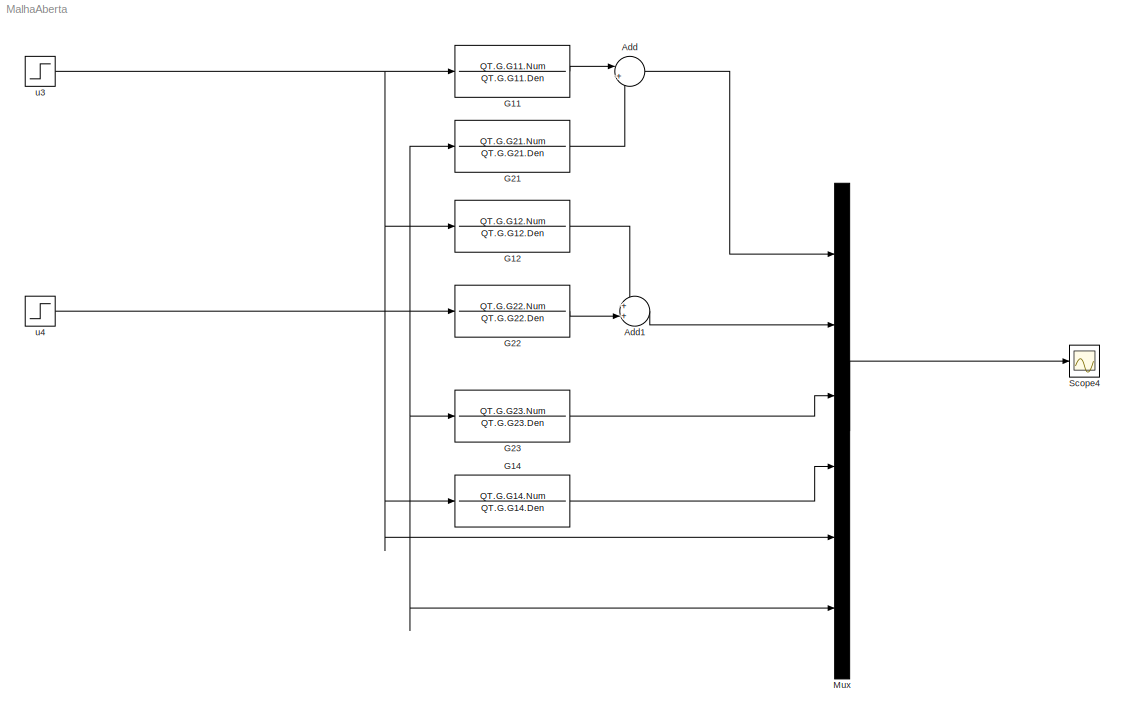
MODEL MalhaAberta
KIND model
BLOCK [Sum] Add
  IconShape = round
  InputSameDT = off
  Inputs = |++
  OutDataTypeStr = Inherit: Inherit via internal rule
  Ports = [2, 1]
  SID = 11
  SaturateOnIntegerOverflow = off
BLOCK [Sum] Add1
  IconShape = round
  InputSameDT = off
  Inputs = ++|
  OutDataTypeStr = Inherit: Inherit via internal rule
  Ports = [2, 1]
  SID = 12
  SaturateOnIntegerOverflow = off
BLOCK [TransferFcn] G11
  Denominator = QT.G.G11.Den
  Numerator = QT.G.G11.Num
  SID = 5
BLOCK [TransferFcn] G12
  Denominator = QT.G.G12.Den
  Numerator = QT.G.G12.Num
  SID = 8
BLOCK [TransferFcn] G14
  Denominator = QT.G.G14.Den
  Numerator = QT.G.G14.Num
  SID = 28
BLOCK [TransferFcn] G21
  Denominator = QT.G.G21.Den
  Numerator = QT.G.G21.Num
  SID = 7
BLOCK [TransferFcn] G22
  Denominator = QT.G.G22.Den
  Numerator = QT.G.G22.Num
  SID = 9
BLOCK [TransferFcn] G23
  Denominator = QT.G.G23.Den
  Numerator = QT.G.G23.Num
  SID = 27
BLOCK [Mux] Mux
  DisplayOption = bar
  Inputs = 6
  Ports = [6, 1]
  SID = 17
BLOCK [Scope] Scope4
  DataFormat = StructureWithTime
  Floating = off
  LimitDataPoints = off
  NumInputPorts = 1
  Ports = [1]
  SID = 96
  SampleTime = 0
  SaveName = SimuladoNM
  SaveToWorkspace = on
  TimeRange = 10
BLOCK [Step] u3
  After = 0.15
  SID = 91
  SampleTime = 0
  Time = 100
BLOCK [Step] u4
  After = 0.15
  SID = 92
  SampleTime = 0
  Time = 1400
LINE Add1:1 -> Mux:2
LINE Add:1 -> Mux:1
LINE G11:1 -> Add:1
LINE G12:1 -> Add1:1
LINE G14:1 -> Mux:4
LINE G21:1 -> Add:2
LINE G22:1 -> Add1:2
LINE G23:1 -> Mux:3
LINE Mux:1 -> Scope4:1
NET u3:1 -> G11:1, G12:1, G14:1, Mux:5
NET u4:1 -> G21:1, G22:1, G23:1, Mux:6
note: NET lines group one-source signal fan-out (src -> all destinations, sorted); 1:1 wires keep LINE
